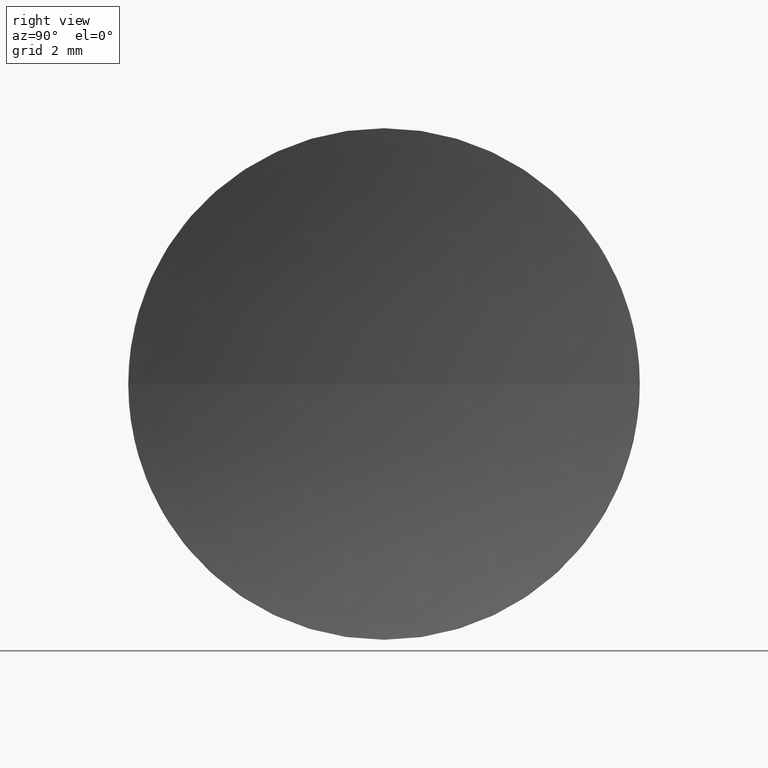
[diagram: clean part render]
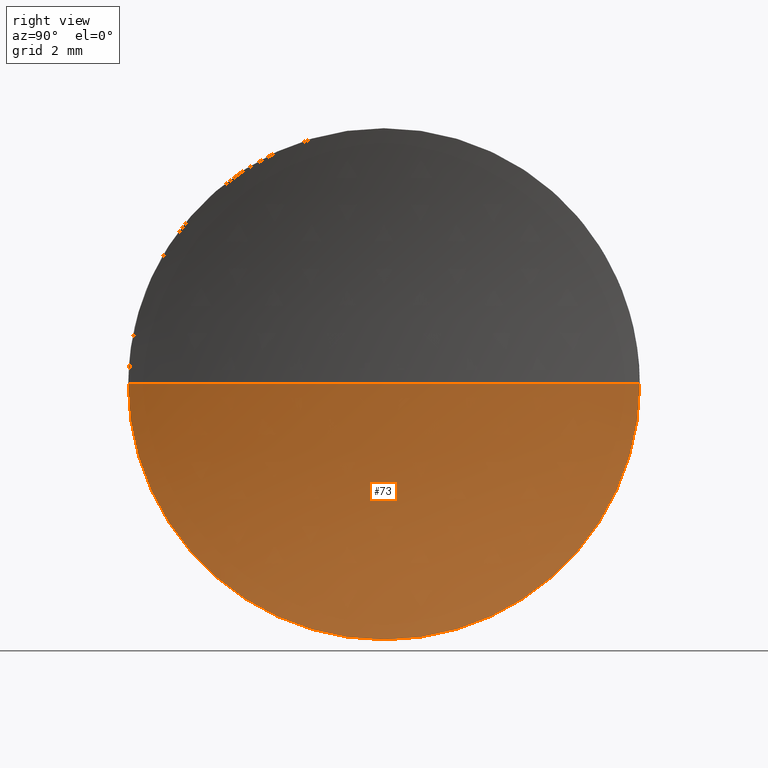
[diagram: same view with one face highlighted and labeled with its STEP entity id]
A machine part, right view. The second image highlights one B-rep face of the part: STEP entity #73.
In plain terms, the highlighted spherical surface has radius 20.7968 mm.
Its self-contained STEP definition (entity closure, byte-faithful):
#14 = AXIS2_PLACEMENT_3D ( 'NONE', #93, #92, #71 ) ;
#16 = VERTEX_POINT ( 'NONE', #150 ) ;
#19 = CIRCLE ( 'NONE', #144, 20.79680093179732500 ) ;
#37 = ORIENTED_EDGE ( 'NONE', *, *, #169, .F. ) ;
#41 = VERTEX_POINT ( 'NONE', #81 ) ;
#46 = CARTESIAN_POINT ( 'NONE',  ( 46.42958549791029600, 26.08904114919495900, 0.0000000000000000000 ) ) ;
#50 = SPHERICAL_SURFACE ( 'NONE', #172, 20.79680093179732500 ) ;
#54 = DIRECTION ( 'NONE',  ( 0.0000000000000000000, 0.0000000000000000000, -1.000000000000000000 ) ) ;
#56 = AXIS2_PLACEMENT_3D ( 'NONE', #177, #181, #57 ) ;
#57 = DIRECTION ( 'NONE',  ( 0.0000000000000000000, 0.0000000000000000000, 1.000000000000000000 ) ) ;
#64 = ORIENTED_EDGE ( 'NONE', *, *, #89, .F. ) ;
#68 = DIRECTION ( 'NONE',  ( 0.0000000000000000000, 1.000000000000000000, 0.0000000000000000000 ) ) ;
#70 = VERTEX_POINT ( 'NONE', #80 ) ;
#71 = DIRECTION ( 'NONE',  ( 1.000000000000000000, 0.0000000000000000000, 0.0000000000000000000 ) ) ;
#73 = ADVANCED_FACE ( 'NONE', ( #127 ), #50, .F. ) ;
#76 = EDGE_LOOP ( 'NONE', ( #129, #37, #64, #176 ) ) ;
#80 = CARTESIAN_POINT ( 'NONE',  ( 46.42958549791030300, 21.08904114919495900, -6.123233995736764300E-016 ) ) ;
#81 = CARTESIAN_POINT ( 'NONE',  ( 46.42958549791029600, 26.08904114919495900, -5.000000000000000900 ) ) ;
#84 = DIRECTION ( 'NONE',  ( 0.0000000000000000000, 1.000000000000000000, 1.224646799147353200E-016 ) ) ;
#89 = EDGE_CURVE ( 'NONE', #16, #41, #132, .T. ) ;
#90 = CARTESIAN_POINT ( 'NONE',  ( 66.61638635878981100, 26.08904114919495500, 0.0000000000000000000 ) ) ;
#92 = DIRECTION ( 'NONE',  ( 0.0000000000000000000, 0.0000000000000000000, 1.000000000000000000 ) ) ;
#93 = CARTESIAN_POINT ( 'NONE',  ( 66.61638635878981100, 26.08904114919495500, 0.0000000000000000000 ) ) ;
#95 = VERTEX_POINT ( 'NONE', #120 ) ;
#96 = CARTESIAN_POINT ( 'NONE',  ( 66.61638635878981100, 26.08904114919495500, 0.0000000000000000000 ) ) ;
#98 = CIRCLE ( 'NONE', #14, 20.79680093179732500 ) ;
#101 = EDGE_CURVE ( 'NONE', #16, #95, #98, .T. ) ;
#110 = AXIS2_PLACEMENT_3D ( 'NONE', #46, #123, #179 ) ;
#111 = CIRCLE ( 'NONE', #56, 5.000000000000000900 ) ;
#120 = CARTESIAN_POINT ( 'NONE',  ( 45.81958542699248900, 26.08904114919495500, 0.0000000000000000000 ) ) ;
#123 = DIRECTION ( 'NONE',  ( -1.000000000000000000, -0.0000000000000000000, -0.0000000000000000000 ) ) ;
#127 = FACE_OUTER_BOUND ( 'NONE', #76, .T. ) ;
#129 = ORIENTED_EDGE ( 'NONE', *, *, #180, .F. ) ;
#132 = CIRCLE ( 'NONE', #110, 5.000000000000000900 ) ;
#134 = DIRECTION ( 'NONE',  ( 0.0000000000000000000, 1.224646799147353200E-016, -1.000000000000000000 ) ) ;
#144 = AXIS2_PLACEMENT_3D ( 'NONE', #96, #134, #84 ) ;
#150 = CARTESIAN_POINT ( 'NONE',  ( 46.42958549791030300, 31.08904114919495900, 0.0000000000000000000 ) ) ;
#169 = EDGE_CURVE ( 'NONE', #41, #70, #111, .T. ) ;
#172 = AXIS2_PLACEMENT_3D ( 'NONE', #90, #54, #68 ) ;
#176 = ORIENTED_EDGE ( 'NONE', *, *, #101, .T. ) ;
#177 = CARTESIAN_POINT ( 'NONE',  ( 46.42958549791029600, 26.08904114919495900, 0.0000000000000000000 ) ) ;
#179 = DIRECTION ( 'NONE',  ( 0.0000000000000000000, 0.0000000000000000000, 1.000000000000000000 ) ) ;
#180 = EDGE_CURVE ( 'NONE', #70, #95, #19, .T. ) ;
#181 = DIRECTION ( 'NONE',  ( -1.000000000000000000, -0.0000000000000000000, -0.0000000000000000000 ) ) ;